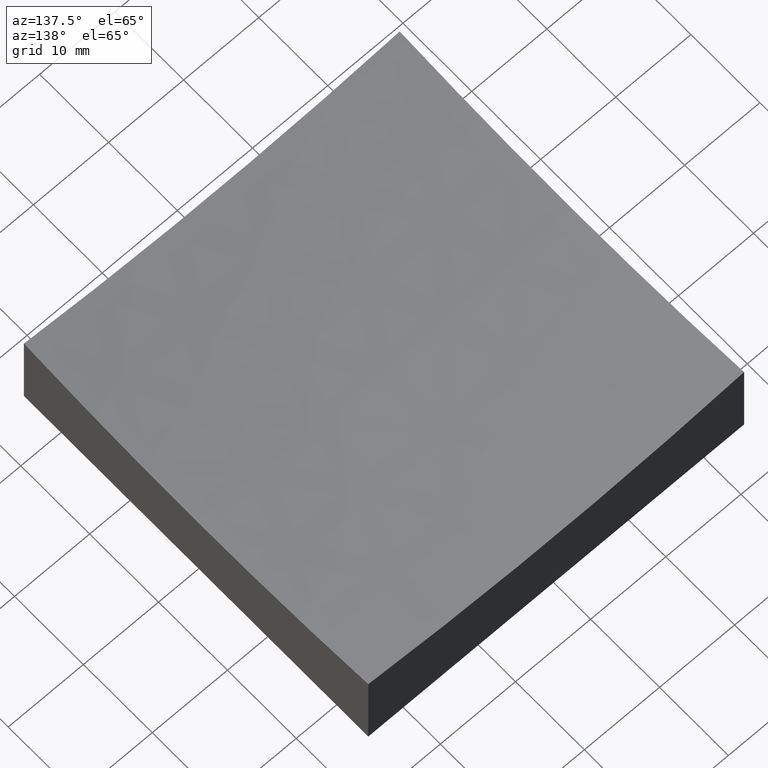
[diagram: clean part render]
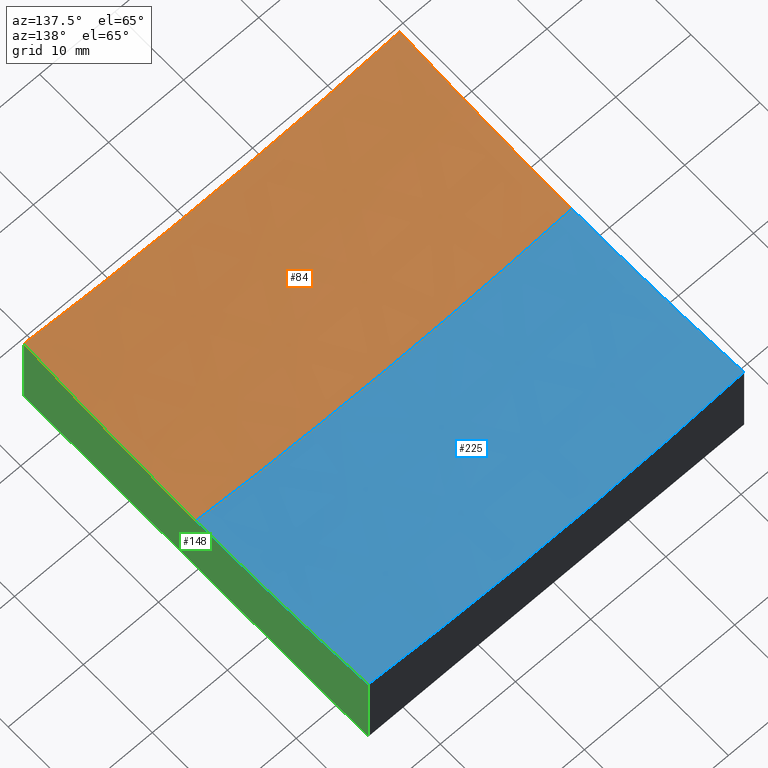
[diagram: same view with three faces highlighted in distinct colors, each labeled with its STEP entity id]
A machine part, auxiliary view with three faces highlighted in distinct colors.
Their STEP definitions:

[orange] entity #84 — the highlighted spherical surface has radius 200 mm.
#11 = ORIENTED_EDGE ( 'NONE', *, *, #15, .T. ) ;
#12 = CARTESIAN_POINT ( 'NONE',  ( 7.621237128813795230E-14, 0.0000000000000000000, 9.000000000000007105 ) ) ;
#15 = EDGE_CURVE ( 'NONE', #228, #64, #40, .T. ) ;
#16 = ORIENTED_EDGE ( 'NONE', *, *, #90, .T. ) ;
#18 = DIRECTION ( 'NONE',  ( 0.0000000000000000000, -1.000000000000000000, 0.0000000000000000000 ) ) ;
#20 = CIRCLE ( 'NONE', #30, 198.4313483298443259 ) ;
#22 = CARTESIAN_POINT ( 'NONE',  ( -25.00000000000000355, 3.061616997868391326E-15, 10.56865167015569362 ) ) ;
#23 = DIRECTION ( 'NONE',  ( -6.993747673752625204E-17, 1.000000000000000000, 0.0000000000000000000 ) ) ;
#28 = EDGE_CURVE ( 'NONE', #137, #64, #54, .T. ) ;
#29 = SPHERICAL_SURFACE ( 'NONE', #208, 200.0000000000000000 ) ;
#30 = AXIS2_PLACEMENT_3D ( 'NONE', #168, #207, #32 ) ;
#31 = CARTESIAN_POINT ( 'NONE',  ( 24.99999999999999289, 0.0000000000000000000, 10.56865167015569362 ) ) ;
#32 = DIRECTION ( 'NONE',  ( 0.0000000000000000000, 0.0000000000000000000, 1.000000000000000000 ) ) ;
#40 = CIRCLE ( 'NONE', #215, 198.4313483298443259 ) ;
#41 = CARTESIAN_POINT ( 'NONE',  ( -25.00000000000000355, -1.734723475976809067E-15, 209.0000000000000284 ) ) ;
#42 = DIRECTION ( 'NONE',  ( -6.993747673752625204E-17, 1.000000000000000000, 0.0000000000000000000 ) ) ;
#54 = CIRCLE ( 'NONE', #195, 200.0000000000000000 ) ;
#57 = EDGE_LOOP ( 'NONE', ( #238, #16, #119, #244, #11 ) ) ;
#61 = EDGE_CURVE ( 'NONE', #127, #209, #115, .T. ) ;
#64 = VERTEX_POINT ( 'NONE', #31 ) ;
#72 = CARTESIAN_POINT ( 'NONE',  ( 2.559511810217968067E-14, 0.0000000000000000000, 209.0000000000000284 ) ) ;
#84 = ADVANCED_FACE ( 'NONE', ( #167 ), #29, .F. ) ;
#90 = EDGE_CURVE ( 'NONE', #137, #209, #102, .T. ) ;
#93 = DIRECTION ( 'NONE',  ( -0.0000000000000000000, 1.000000000000000000, 0.0000000000000000000 ) ) ;
#100 = EDGE_CURVE ( 'NONE', #228, #127, #20, .T. ) ;
#102 = CIRCLE ( 'NONE', #239, 200.0000000000000000 ) ;
#110 = DIRECTION ( 'NONE',  ( 1.000000000000000000, 0.0000000000000000000, 1.387778780781445676E-16 ) ) ;
#115 = CIRCLE ( 'NONE', #249, 198.4313483298443259 ) ;
#119 = ORIENTED_EDGE ( 'NONE', *, *, #61, .F. ) ;
#124 = CARTESIAN_POINT ( 'NONE',  ( 2.559511810217968067E-14, 0.0000000000000000000, 209.0000000000000284 ) ) ;
#127 = VERTEX_POINT ( 'NONE', #227 ) ;
#137 = VERTEX_POINT ( 'NONE', #12 ) ;
#158 = CARTESIAN_POINT ( 'NONE',  ( 24.99999999999999645, 1.734723475976805122E-15, 209.0000000000000284 ) ) ;
#167 = FACE_OUTER_BOUND ( 'NONE', #57, .T. ) ;
#168 = CARTESIAN_POINT ( 'NONE',  ( 2.559511810217968067E-14, -25.00000000000000711, 209.0000000000000284 ) ) ;
#179 = CARTESIAN_POINT ( 'NONE',  ( 25.00000000000000000, -25.00000000000000711, 12.14980314970470765 ) ) ;
#187 = DIRECTION ( 'NONE',  ( 1.224646799147353207E-16, 1.000000000000000000, 2.349532963459819023E-32 ) ) ;
#189 = DIRECTION ( 'NONE',  ( -1.000000000000000000, 1.224646799147353207E-16, 0.0000000000000000000 ) ) ;
#195 = AXIS2_PLACEMENT_3D ( 'NONE', #124, #18, #198 ) ;
#197 = DIRECTION ( 'NONE',  ( 1.000000000000000000, 6.938893903907228378E-17, -0.0000000000000000000 ) ) ;
#198 = DIRECTION ( 'NONE',  ( 0.0000000000000000000, 0.0000000000000000000, -1.000000000000000000 ) ) ;
#207 = DIRECTION ( 'NONE',  ( 0.0000000000000000000, 1.000000000000000000, 0.0000000000000000000 ) ) ;
#208 = AXIS2_PLACEMENT_3D ( 'NONE', #72, #93, #110 ) ;
#209 = VERTEX_POINT ( 'NONE', #22 ) ;
#215 = AXIS2_PLACEMENT_3D ( 'NONE', #158, #217, #42 ) ;
#217 = DIRECTION ( 'NONE',  ( 1.000000000000000000, 6.938893903907228378E-17, -0.0000000000000000000 ) ) ;
#227 = CARTESIAN_POINT ( 'NONE',  ( -25.00000000000000000, -25.00000000000000711, 12.14980314970470765 ) ) ;
#228 = VERTEX_POINT ( 'NONE', #179 ) ;
#238 = ORIENTED_EDGE ( 'NONE', *, *, #28, .F. ) ;
#239 = AXIS2_PLACEMENT_3D ( 'NONE', #241, #187, #189 ) ;
#241 = CARTESIAN_POINT ( 'NONE',  ( 2.559511810217968067E-14, 0.0000000000000000000, 209.0000000000000284 ) ) ;
#244 = ORIENTED_EDGE ( 'NONE', *, *, #100, .F. ) ;
#249 = AXIS2_PLACEMENT_3D ( 'NONE', #41, #197, #23 ) ;

[blue] entity #225 — the highlighted spherical surface has radius 200 mm.
#1 = CARTESIAN_POINT ( 'NONE',  ( 2.559511810217968067E-14, 0.0000000000000000000, 209.0000000000000284 ) ) ;
#3 = VERTEX_POINT ( 'NONE', #214 ) ;
#9 = DIRECTION ( 'NONE',  ( 0.0000000000000000000, 1.000000000000000000, 0.0000000000000000000 ) ) ;
#12 = CARTESIAN_POINT ( 'NONE',  ( 7.621237128813795230E-14, 0.0000000000000000000, 9.000000000000007105 ) ) ;
#14 = DIRECTION ( 'NONE',  ( -6.993747673752625204E-17, 1.000000000000000000, 0.0000000000000000000 ) ) ;
#18 = DIRECTION ( 'NONE',  ( 0.0000000000000000000, -1.000000000000000000, 0.0000000000000000000 ) ) ;
#22 = CARTESIAN_POINT ( 'NONE',  ( -25.00000000000000355, 3.061616997868391326E-15, 10.56865167015569362 ) ) ;
#28 = EDGE_CURVE ( 'NONE', #137, #64, #54, .T. ) ;
#31 = CARTESIAN_POINT ( 'NONE',  ( 24.99999999999999289, 0.0000000000000000000, 10.56865167015569362 ) ) ;
#33 = CIRCLE ( 'NONE', #222, 198.4313483298443259 ) ;
#46 = VERTEX_POINT ( 'NONE', #178 ) ;
#54 = CIRCLE ( 'NONE', #195, 200.0000000000000000 ) ;
#55 = DIRECTION ( 'NONE',  ( 0.0000000000000000000, 0.0000000000000000000, 1.000000000000000000 ) ) ;
#56 = EDGE_CURVE ( 'NONE', #209, #46, #33, .T. ) ;
#62 = DIRECTION ( 'NONE',  ( 1.000000000000000000, 6.938893903907228378E-17, -0.0000000000000000000 ) ) ;
#64 = VERTEX_POINT ( 'NONE', #31 ) ;
#70 = DIRECTION ( 'NONE',  ( 1.000000000000000000, 0.0000000000000000000, 1.387778780781445676E-16 ) ) ;
#71 = AXIS2_PLACEMENT_3D ( 'NONE', #226, #9, #55 ) ;
#77 = EDGE_CURVE ( 'NONE', #3, #46, #177, .T. ) ;
#81 = CARTESIAN_POINT ( 'NONE',  ( -25.00000000000000355, -1.734723475976809067E-15, 209.0000000000000284 ) ) ;
#90 = EDGE_CURVE ( 'NONE', #137, #209, #102, .T. ) ;
#102 = CIRCLE ( 'NONE', #239, 200.0000000000000000 ) ;
#109 = SPHERICAL_SURFACE ( 'NONE', #135, 200.0000000000000000 ) ;
#122 = ORIENTED_EDGE ( 'NONE', *, *, #77, .T. ) ;
#124 = CARTESIAN_POINT ( 'NONE',  ( 2.559511810217968067E-14, 0.0000000000000000000, 209.0000000000000284 ) ) ;
#125 = EDGE_CURVE ( 'NONE', #64, #3, #199, .T. ) ;
#126 = FACE_OUTER_BOUND ( 'NONE', #246, .T. ) ;
#135 = AXIS2_PLACEMENT_3D ( 'NONE', #1, #143, #70 ) ;
#137 = VERTEX_POINT ( 'NONE', #12 ) ;
#141 = DIRECTION ( 'NONE',  ( -6.993747673752625204E-17, 1.000000000000000000, 0.0000000000000000000 ) ) ;
#143 = DIRECTION ( 'NONE',  ( -0.0000000000000000000, 1.000000000000000000, 0.0000000000000000000 ) ) ;
#157 = ORIENTED_EDGE ( 'NONE', *, *, #28, .T. ) ;
#159 = DIRECTION ( 'NONE',  ( 1.000000000000000000, 6.938893903907228378E-17, -0.0000000000000000000 ) ) ;
#177 = CIRCLE ( 'NONE', #71, 198.4313483298443259 ) ;
#178 = CARTESIAN_POINT ( 'NONE',  ( -25.00000000000000711, 24.99999999999999645, 12.14980314970470765 ) ) ;
#186 = ORIENTED_EDGE ( 'NONE', *, *, #56, .F. ) ;
#187 = DIRECTION ( 'NONE',  ( 1.224646799147353207E-16, 1.000000000000000000, 2.349532963459819023E-32 ) ) ;
#189 = DIRECTION ( 'NONE',  ( -1.000000000000000000, 1.224646799147353207E-16, 0.0000000000000000000 ) ) ;
#194 = CARTESIAN_POINT ( 'NONE',  ( 24.99999999999999645, 1.734723475976805122E-15, 209.0000000000000284 ) ) ;
#195 = AXIS2_PLACEMENT_3D ( 'NONE', #124, #18, #198 ) ;
#198 = DIRECTION ( 'NONE',  ( 0.0000000000000000000, 0.0000000000000000000, -1.000000000000000000 ) ) ;
#199 = CIRCLE ( 'NONE', #210, 198.4313483298443259 ) ;
#209 = VERTEX_POINT ( 'NONE', #22 ) ;
#210 = AXIS2_PLACEMENT_3D ( 'NONE', #194, #62, #14 ) ;
#212 = ORIENTED_EDGE ( 'NONE', *, *, #125, .T. ) ;
#214 = CARTESIAN_POINT ( 'NONE',  ( 24.99999999999999645, 24.99999999999999645, 12.14980314970470765 ) ) ;
#220 = ORIENTED_EDGE ( 'NONE', *, *, #90, .F. ) ;
#222 = AXIS2_PLACEMENT_3D ( 'NONE', #81, #159, #141 ) ;
#225 = ADVANCED_FACE ( 'NONE', ( #126 ), #109, .F. ) ;
#226 = CARTESIAN_POINT ( 'NONE',  ( 2.559511810217968067E-14, 24.99999999999999645, 209.0000000000000284 ) ) ;
#239 = AXIS2_PLACEMENT_3D ( 'NONE', #241, #187, #189 ) ;
#241 = CARTESIAN_POINT ( 'NONE',  ( 2.559511810217968067E-14, 0.0000000000000000000, 209.0000000000000284 ) ) ;
#246 = EDGE_LOOP ( 'NONE', ( #220, #157, #212, #122, #186 ) ) ;

[green] entity #148 — the highlighted planar face has unit normal (1, 0, -0).
#3 = VERTEX_POINT ( 'NONE', #214 ) ;
#14 = DIRECTION ( 'NONE',  ( -6.993747673752625204E-17, 1.000000000000000000, 0.0000000000000000000 ) ) ;
#15 = EDGE_CURVE ( 'NONE', #228, #64, #40, .T. ) ;
#19 = EDGE_CURVE ( 'NONE', #3, #59, #160, .T. ) ;
#31 = CARTESIAN_POINT ( 'NONE',  ( 24.99999999999999289, 0.0000000000000000000, 10.56865167015569362 ) ) ;
#39 = EDGE_LOOP ( 'NONE', ( #191, #134, #63, #233, #145 ) ) ;
#40 = CIRCLE ( 'NONE', #215, 198.4313483298443259 ) ;
#42 = DIRECTION ( 'NONE',  ( -6.993747673752625204E-17, 1.000000000000000000, 0.0000000000000000000 ) ) ;
#43 = VECTOR ( 'NONE', #171, 1000.000000000000000 ) ;
#59 = VERTEX_POINT ( 'NONE', #216 ) ;
#62 = DIRECTION ( 'NONE',  ( 1.000000000000000000, 6.938893903907228378E-17, -0.0000000000000000000 ) ) ;
#63 = ORIENTED_EDGE ( 'NONE', *, *, #133, .F. ) ;
#64 = VERTEX_POINT ( 'NONE', #31 ) ;
#66 = CARTESIAN_POINT ( 'NONE',  ( 24.99999999999999645, 24.99999999999999645, 50.00000000000000000 ) ) ;
#78 = CARTESIAN_POINT ( 'NONE',  ( 24.99999999999999645, 24.99999999999999645, 0.0000000000000000000 ) ) ;
#96 = CARTESIAN_POINT ( 'NONE',  ( 25.00000000000000000, -25.00000000000000711, 50.00000000000000000 ) ) ;
#98 = PLANE ( 'NONE',  #230 ) ;
#118 = LINE ( 'NONE', #96, #43 ) ;
#125 = EDGE_CURVE ( 'NONE', #64, #3, #199, .T. ) ;
#133 = EDGE_CURVE ( 'NONE', #59, #147, #136, .T. ) ;
#134 = ORIENTED_EDGE ( 'NONE', *, *, #181, .T. ) ;
#136 = LINE ( 'NONE', #78, #173 ) ;
#138 = CARTESIAN_POINT ( 'NONE',  ( 24.99999999999999645, 24.99999999999999645, 50.00000000000000000 ) ) ;
#142 = DIRECTION ( 'NONE',  ( -0.0000000000000000000, -0.0000000000000000000, -1.000000000000000000 ) ) ;
#145 = ORIENTED_EDGE ( 'NONE', *, *, #125, .F. ) ;
#147 = VERTEX_POINT ( 'NONE', #231 ) ;
#148 = ADVANCED_FACE ( 'NONE', ( #169 ), #98, .T. ) ;
#158 = CARTESIAN_POINT ( 'NONE',  ( 24.99999999999999645, 1.734723475976805122E-15, 209.0000000000000284 ) ) ;
#160 = LINE ( 'NONE', #66, #162 ) ;
#162 = VECTOR ( 'NONE', #142, 1000.000000000000000 ) ;
#169 = FACE_OUTER_BOUND ( 'NONE', #39, .T. ) ;
#171 = DIRECTION ( 'NONE',  ( -0.0000000000000000000, -0.0000000000000000000, -1.000000000000000000 ) ) ;
#173 = VECTOR ( 'NONE', #211, 1000.000000000000000 ) ;
#174 = DIRECTION ( 'NONE',  ( 1.000000000000000000, 6.938893903907228378E-17, -0.0000000000000000000 ) ) ;
#179 = CARTESIAN_POINT ( 'NONE',  ( 25.00000000000000000, -25.00000000000000711, 12.14980314970470765 ) ) ;
#181 = EDGE_CURVE ( 'NONE', #228, #147, #118, .T. ) ;
#191 = ORIENTED_EDGE ( 'NONE', *, *, #15, .F. ) ;
#194 = CARTESIAN_POINT ( 'NONE',  ( 24.99999999999999645, 1.734723475976805122E-15, 209.0000000000000284 ) ) ;
#199 = CIRCLE ( 'NONE', #210, 198.4313483298443259 ) ;
#210 = AXIS2_PLACEMENT_3D ( 'NONE', #194, #62, #14 ) ;
#211 = DIRECTION ( 'NONE',  ( 6.938893903907228378E-17, -1.000000000000000000, 0.0000000000000000000 ) ) ;
#213 = DIRECTION ( 'NONE',  ( -6.938893903907228378E-17, 1.000000000000000000, 0.0000000000000000000 ) ) ;
#214 = CARTESIAN_POINT ( 'NONE',  ( 24.99999999999999645, 24.99999999999999645, 12.14980314970470765 ) ) ;
#215 = AXIS2_PLACEMENT_3D ( 'NONE', #158, #217, #42 ) ;
#216 = CARTESIAN_POINT ( 'NONE',  ( 24.99999999999999645, 24.99999999999999645, 0.0000000000000000000 ) ) ;
#217 = DIRECTION ( 'NONE',  ( 1.000000000000000000, 6.938893903907228378E-17, -0.0000000000000000000 ) ) ;
#228 = VERTEX_POINT ( 'NONE', #179 ) ;
#230 = AXIS2_PLACEMENT_3D ( 'NONE', #138, #174, #213 ) ;
#231 = CARTESIAN_POINT ( 'NONE',  ( 25.00000000000000000, -25.00000000000000711, 0.0000000000000000000 ) ) ;
#233 = ORIENTED_EDGE ( 'NONE', *, *, #19, .F. ) ;